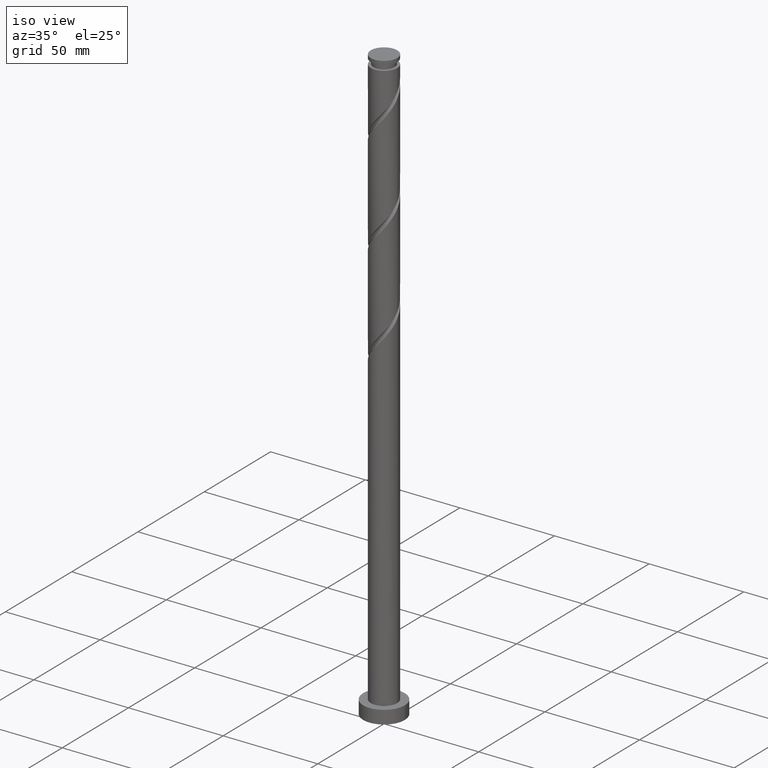
[diagram: clean part render]
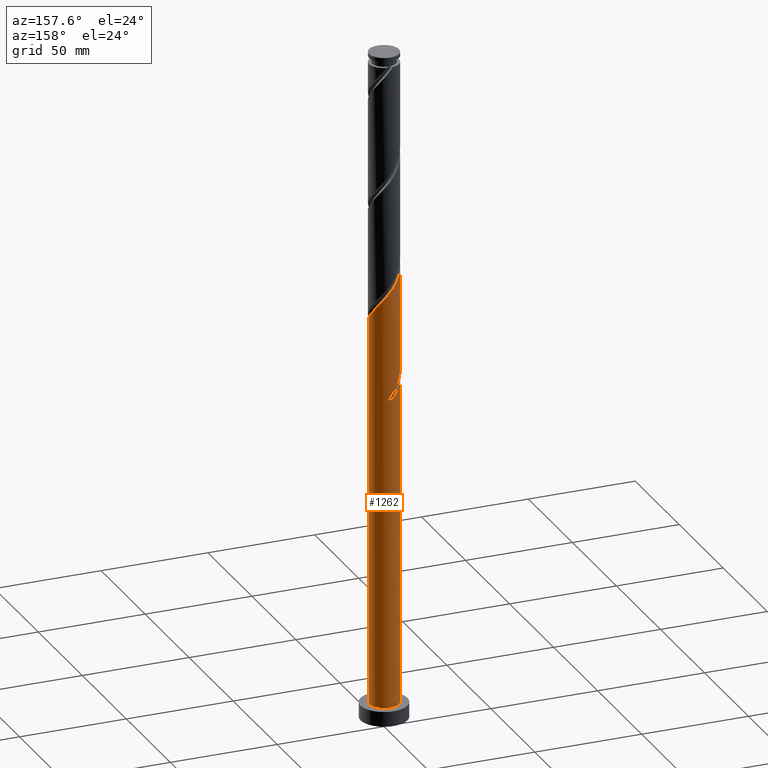
[diagram: tour spotlight — one face highlighted and labeled with its STEP entity id]
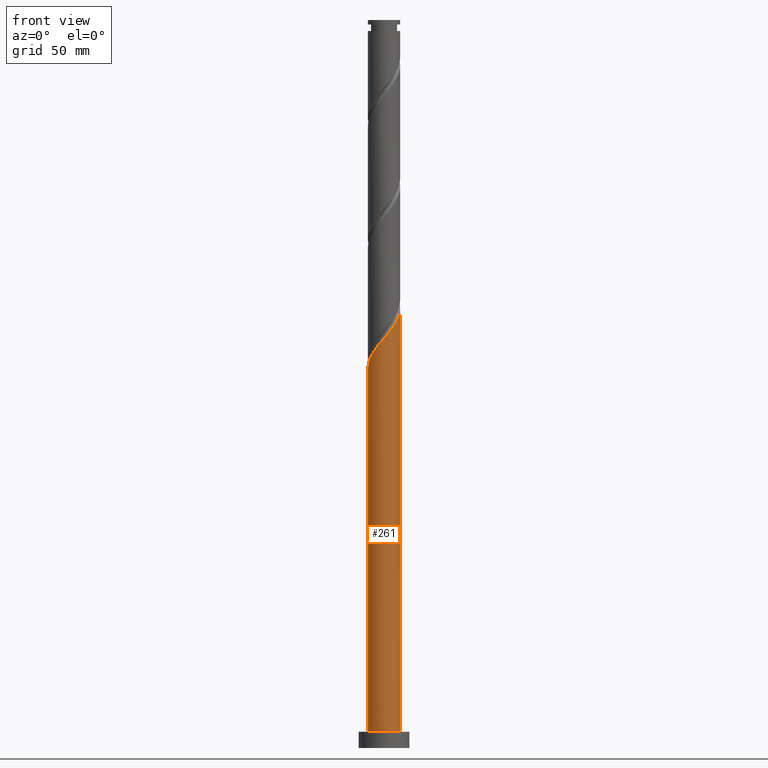
[diagram: tour spotlight — one face highlighted and labeled with its STEP entity id]
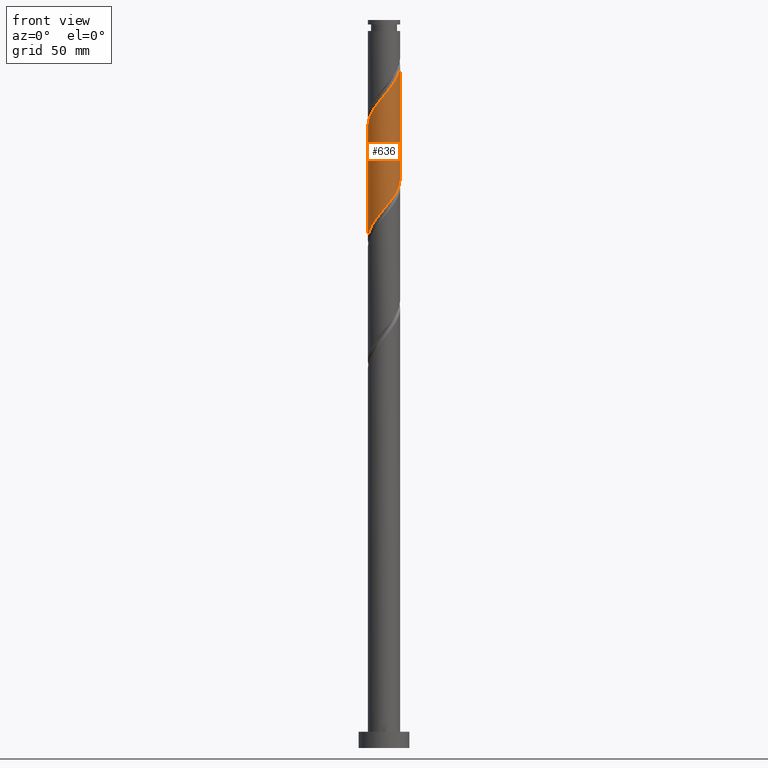
[diagram: tour spotlight — one face highlighted and labeled with its STEP entity id]
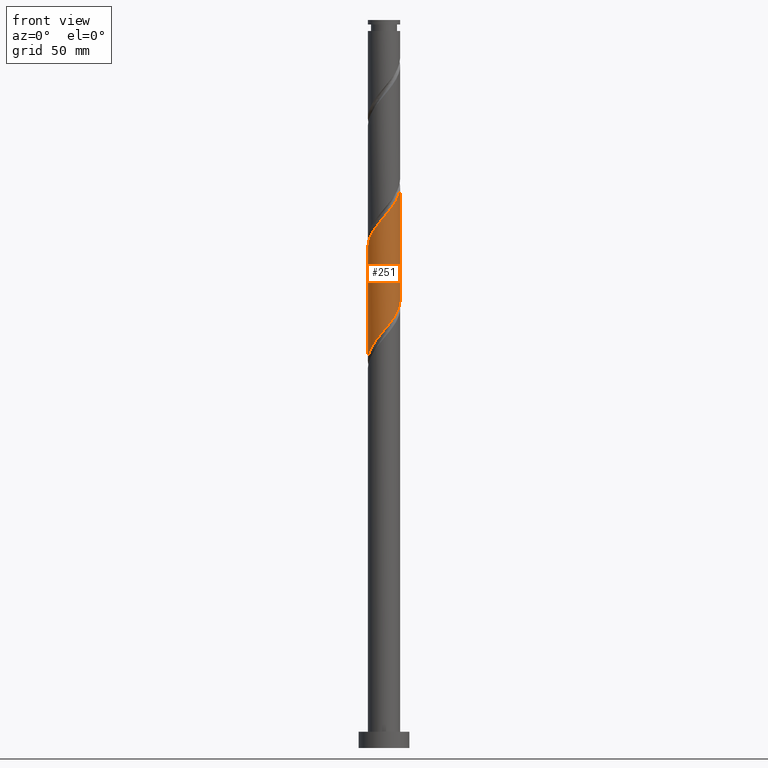
[diagram: tour spotlight — one face highlighted and labeled with its STEP entity id]
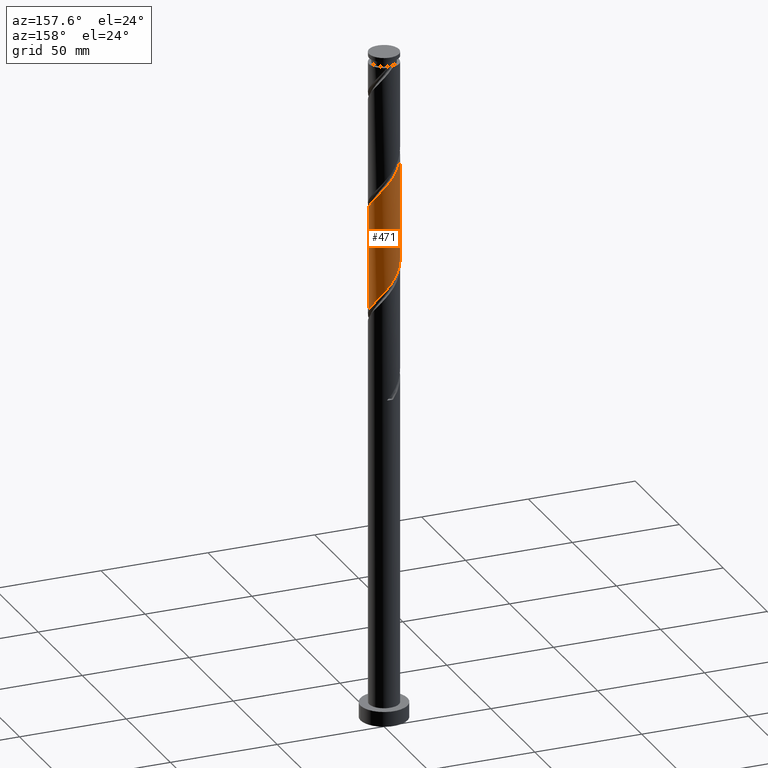
[diagram: tour spotlight — one face highlighted and labeled with its STEP entity id]
A machine part: a face-by-face anatomy tour. The part has 21 B-rep faces; the first image is the clean iso view, then the 5 largest visible faces are spotlighted one at a time (largest first), each with its STEP entity span.

Face 1 — auxiliary view, entity #1262. In plain terms, the highlighted cylindrical surface (edge-blend (fillet) strip) has radius 7 mm, axis along (-0, -0, -1).
Definition (entity closure, byte-faithful):
#29 = CIRCLE ( 'NONE', #1184, 7.000000000000000000 ) ;
#46 = CARTESIAN_POINT ( 'NONE',  ( 4.494853641711740622, 5.366217544937105899, 197.7581206460753833 ) ) ;
#75 = CARTESIAN_POINT ( 'NONE',  ( -6.591082676329794054, 2.485898938349334397, 213.6956206460753549 ) ) ;
#83 = CARTESIAN_POINT ( 'NONE',  ( 0.000000000000000000, 0.000000000000000000, 315.0000000000000000 ) ) ;
#89 =( BOUNDED_CURVE ( )  B_SPLINE_CURVE ( 2, ( #142, #1815, #481, #789, #1381, #657, #1233, #508, #1824, #1081, #1671, #1530, #498, #1099, #1240 ),
 .UNSPECIFIED., .F., .T. ) 
 B_SPLINE_CURVE_WITH_KNOTS ( ( 3, 2, 2, 2, 2, 2, 2, 3 ),
 ( 0.000000000000000000, 0.008928571428571396851, 0.01785714285714290472, 0.02678571428571430157, 0.03571428571428569843, 0.04464285714285709528, 0.05357142857142860315, 0.05453034012992220153 ),
 .UNSPECIFIED. ) 
 CURVE ( )  GEOMETRIC_REPRESENTATION_ITEM ( )  RATIONAL_B_SPLINE_CURVE ( ( 0.9090909090909291557, 0.9033747362666041392, 0.9090909090909291557, 0.9033747362666041392, 0.9090909090909291557, 0.9033747362666041392, 0.9090909090909291557, 0.9033747362666041392, 0.9090909090909291557, 0.9033747362666041392, 0.9090909090909291557, 0.9033747362666041392, 0.9090909090909291557, 0.9084770030214708303, 0.9079949616361990827 ) ) 
 REPRESENTATION_ITEM ( '' )  );
#119 = DIRECTION ( 'NONE',  ( 1.000000000000000000, 0.000000000000000000, 0.000000000000000000 ) ) ;
#127 = ORIENTED_EDGE ( 'NONE', *, *, #1121, .T. ) ;
#142 = CARTESIAN_POINT ( 'NONE',  ( -1.392982411949269750, 6.860000000000009202, 152.7581206460753833 ) ) ;
#203 = CARTESIAN_POINT ( 'NONE',  ( -3.188062536564720162, 6.231874297749633307, 158.3831206460754117 ) ) ;
#216 = VERTEX_POINT ( 'NONE', #1872 ) ;
#246 = ORIENTED_EDGE ( 'NONE', *, *, #1596, .T. ) ;
#268 = DIRECTION ( 'NONE',  ( 0.000000000000000000, 0.000000000000000000, 1.000000000000000000 ) ) ;
#269 = LINE ( 'NONE', #1902, #715 ) ;
#322 = DIRECTION ( 'NONE',  ( 0.000000000000000000, -0.000000000000000000, -1.000000000000000000 ) ) ;
#330 = CARTESIAN_POINT ( 'NONE',  ( 7.000000000000007994, -3.283670174735769499E-16, 190.4586035681692238 ) ) ;
#336 = CARTESIAN_POINT ( 'NONE',  ( -7.000000000000000000, 0.7035264706814512436, 166.7193666450178853 ) ) ;
#365 = CARTESIAN_POINT ( 'NONE',  ( -6.231874297749644853, 3.188062536564726823, 212.7581206460753833 ) ) ;
#379 = ORIENTED_EDGE ( 'NONE', *, *, #835, .F. ) ;
#403 = CARTESIAN_POINT ( 'NONE',  ( -1.721408663644532266, 6.785038851232138235, 156.5081206460753833 ) ) ;
#437 = VERTEX_POINT ( 'NONE', #1780 ) ;
#455 = VERTEX_POINT ( 'NONE', #894 ) ;
#477 = DIRECTION ( 'NONE',  ( -0.000000000000000000, -0.000000000000000000, -1.000000000000000000 ) ) ;
#480 = LINE ( 'NONE', #929, #995 ) ;
#481 = CARTESIAN_POINT ( 'NONE',  ( -2.884551041528023330, 6.378037730275646133, 154.6331206460754117 ) ) ;
#484 = EDGE_CURVE ( 'NONE', #437, #455, #269, .T. ) ;
#486 = CARTESIAN_POINT ( 'NONE',  ( 5.576254016389058599, 4.231476237048368283, 195.8831206460753265 ) ) ;
#498 = CARTESIAN_POINT ( 'NONE',  ( -6.997973224858988317, 0.1684361723526147936, 164.0081206460753833 ) ) ;
#503 = CARTESIAN_POINT ( 'NONE',  ( 1.721408663644536707, 6.785038851232146229, 201.5081206460753833 ) ) ;
#508 = CARTESIAN_POINT ( 'NONE',  ( -5.872665919169490323, 3.890226134780118805, 159.3206206460753549 ) ) ;
#512 = CARTESIAN_POINT ( 'NONE',  ( -5.366217544937106787, 4.494853641711739733, 210.8831206460753549 ) ) ;
#513 = CARTESIAN_POINT ( 'NONE',  ( -3.890226134780113476, 5.872665919169481441, 159.3206206460753549 ) ) ;
#531 = DIRECTION ( 'NONE',  ( -0.000000000000000000, -0.000000000000000000, -1.000000000000000000 ) ) ;
#559 = CARTESIAN_POINT ( 'NONE',  ( -0.9569183889397352427, 6.978995026134490409, 155.5706206460753549 ) ) ;
#563 = ORIENTED_EDGE ( 'NONE', *, *, #1551, .F. ) ;
#629 = CARTESIAN_POINT ( 'NONE',  ( -6.859999999999998543, 1.392982411949270860, 165.8831206460753549 ) ) ;
#639 = CARTESIAN_POINT ( 'NONE',  ( -0.6200460442345070433, 7.016951423583478231, 204.3206206460753549 ) ) ;
#650 = CARTESIAN_POINT ( 'NONE',  ( -2.884551041528023330, 6.378037730275646133, 207.1331206460753833 ) ) ;
#657 = CARTESIAN_POINT ( 'NONE',  ( -4.859769170704725916, 5.099481148643358885, 157.4456206460753549 ) ) ;
#681 = FACE_OUTER_BOUND ( 'NONE', #1562, .T. ) ;
#715 = VECTOR ( 'NONE', #1611, 1000.000000000000000 ) ;
#729 = ORIENTED_EDGE ( 'NONE', *, *, #1016, .F. ) ;
#749 = VECTOR ( 'NONE', #477, 1000.000000000000000 ) ;
#758 = CARTESIAN_POINT ( 'NONE',  ( -7.000000000000007994, 0.08423028016473764479, 216.6082408799441907 ) ) ;
#777 = CARTESIAN_POINT ( 'NONE',  ( -7.000000000000007994, -5.671793938179965453E-16, 216.7086035681693090 ) ) ;
#784 = LINE ( 'NONE', #1811, #749 ) ;
#789 = CARTESIAN_POINT ( 'NONE',  ( -3.603183303392011538, 6.053026884134758312, 155.5706206460753265 ) ) ;
#799 = CARTESIAN_POINT ( 'NONE',  ( 0.1684361723526161259, 6.997973224858987429, 203.3831206460753549 ) ) ;
#807 = CARTESIAN_POINT ( 'NONE',  ( -4.231476237048369171, 5.576254016389058599, 209.0081206460753549 ) ) ;
#818 = VERTEX_POINT ( 'NONE', #1620 ) ;
#830 = CARTESIAN_POINT ( 'NONE',  ( 0.6200460442345090417, 7.016951423583470238, 153.6956206460753549 ) ) ;
#835 = EDGE_CURVE ( 'NONE', #818, #437, #89, .T. ) ;
#869 = VERTEX_POINT ( 'NONE', #1659 ) ;
#894 = CARTESIAN_POINT ( 'NONE',  ( -7.000000000000000000, 0.000000000000000000, 7.000000000000000000 ) ) ;
#915 = CARTESIAN_POINT ( 'NONE',  ( -7.000000000000007994, -5.671793938179965453E-16, 216.7086035681693090 ) ) ;
#918 = CARTESIAN_POINT ( 'NONE',  ( -6.978995026134500179, 0.9569183889397380183, 215.5706206460753549 ) ) ;
#924 = CARTESIAN_POINT ( 'NONE',  ( 7.000000000000014211, 0.7035264706814203794, 191.2968746471328529 ) ) ;
#929 = CARTESIAN_POINT ( 'NONE',  ( 7.000000000000000000, 8.572527594031473190E-16, 315.0000000000000000 ) ) ;
#933 = CARTESIAN_POINT ( 'NONE',  ( -6.703048576416525961, 2.165918779664032012, 164.9456206460753833 ) ) ;
#952 = CARTESIAN_POINT ( 'NONE',  ( 0.9569183889397397946, 6.978995026134499291, 202.4456206460753549 ) ) ;
#984 = CARTESIAN_POINT ( 'NONE',  ( -6.785038851232147117, 1.721408663644536263, 214.6331206460754117 ) ) ;
#995 = VECTOR ( 'NONE', #1793, 1000.000000000000000 ) ;
#1016 = EDGE_CURVE ( 'NONE', #1607, #1495, #784, .T. ) ;
#1053 = EDGE_CURVE ( 'NONE', #216, #1607, #1338, .T. ) ;
#1063 = CARTESIAN_POINT ( 'NONE',  ( 0.000000000000000000, 0.000000000000000000, 152.7581206460753833 ) ) ;
#1081 = CARTESIAN_POINT ( 'NONE',  ( -6.591082676329794054, 2.485898938349334397, 161.1956206460754117 ) ) ;
#1099 = CARTESIAN_POINT ( 'NONE',  ( -7.000000000000008882, 0.08423028016472239310, 164.1082408799442476 ) ) ;
#1103 = CARTESIAN_POINT ( 'NONE',  ( -5.872665919169490323, 3.890226134780118805, 211.8206206460754117 ) ) ;
#1121 = EDGE_CURVE ( 'NONE', #216, #869, #480, .T. ) ;
#1153 = CARTESIAN_POINT ( 'NONE',  ( 1.392982411949271970, 6.859999999999998543, 152.7581206460753833 ) ) ;
#1159 = ORIENTED_EDGE ( 'NONE', *, *, #1053, .F. ) ;
#1184 = AXIS2_PLACEMENT_3D ( 'NONE', #1063, #322, #1202 ) ;
#1202 = DIRECTION ( 'NONE',  ( -1.000000000000000000, 0.000000000000000000, 0.000000000000000000 ) ) ;
#1233 = CARTESIAN_POINT ( 'NONE',  ( -5.366217544937106787, 4.494853641711739733, 158.3831206460753833 ) ) ;
#1238 = CARTESIAN_POINT ( 'NONE',  ( -2.165918779664034677, 6.703048576416536619, 206.1956206460753833 ) ) ;
#1240 = CARTESIAN_POINT ( 'NONE',  ( -7.000000000000007994, -5.671793938179964467E-16, 164.2086035681693659 ) ) ;
#1249 = CARTESIAN_POINT ( 'NONE',  ( -3.603183303392011538, 6.053026884134758312, 208.0706206460754117 ) ) ;
#1258 = CARTESIAN_POINT ( 'NONE',  ( 3.188062536564727267, 6.231874297749643077, 199.6331206460753265 ) ) ;
#1262 = ADVANCED_FACE ( 'NONE', ( #681 ), #1435, .T. ) ;
#1312 = CARTESIAN_POINT ( 'NONE',  ( -4.494853641711730852, 5.366217544937102346, 160.2581206460753833 ) ) ;
#1334 = CARTESIAN_POINT ( 'NONE',  ( 1.392982411949271970, 6.859999999999998543, 152.7581206460753833 ) ) ;
#1338 =( BOUNDED_CURVE ( )  B_SPLINE_CURVE ( 2, ( #330, #924, #1515, #1377, #1526, #1821, #486, #1524, #46, #1687, #1258, #1858, #503, #952, #799, #639, #1849, #1238, #650, #1249, #807, #1411, #512, #1103, #365, #75, #984, #918, #1500, #758, #777 ),
 .UNSPECIFIED., .F., .T. ) 
 B_SPLINE_CURVE_WITH_KNOTS ( ( 3, 2, 2, 2, 2, 2, 2, 2, 2, 2, 2, 2, 2, 2, 2, 3 ),
 ( 0.1795303401299217505, 0.1875000000000000000, 0.1964285714285713969, 0.2053571428571429047, 0.2142857142857143016, 0.2232142857142856984, 0.2321428571428570953, 0.2410714285714286031, 0.2500000000000000000, 0.2589285714285713969, 0.2678571428571429047, 0.2767857142857143016, 0.2857142857142856984, 0.2946428571428570953, 0.3035714285714286031, 0.3045303401299220281 ),
 .UNSPECIFIED. ) 
 CURVE ( )  GEOMETRIC_REPRESENTATION_ITEM ( )  RATIONAL_B_SPLINE_CURVE ( ( 0.9079949616361996378, 0.9039886423360622425, 0.9090909090909291557, 0.9033747362666041392, 0.9090909090909291557, 0.9033747362666041392, 0.9090909090909291557, 0.9033747362666041392, 0.9090909090909291557, 0.9033747362666041392, 0.9090909090909291557, 0.9033747362666041392, 0.9090909090909291557, 0.9033747362666041392, 0.9090909090909291557, 0.9033747362666041392, 0.9090909090909291557, 0.9033747362666041392, 0.9090909090909291557, 0.9033747362666041392, 0.9090909090909291557, 0.9033747362666041392, 0.9090909090909291557, 0.9033747362666041392, 0.9090909090909291557, 0.9033747362666041392, 0.9090909090909291557, 0.9033747362666041392, 0.9090909090909291557, 0.9084770030214709413, 0.9079949616361993048 ) ) 
 REPRESENTATION_ITEM ( '' )  );
#1345 = CARTESIAN_POINT ( 'NONE',  ( -6.378037730275637252, 2.884551041528019777, 164.0081206460753265 ) ) ;
#1356 = CARTESIAN_POINT ( 'NONE',  ( -6.999999999999999112, 2.417975310487264347E-15, 167.5576377239814008 ) ) ;
#1377 = CARTESIAN_POINT ( 'NONE',  ( 6.703048576416536619, 2.165918779664033345, 193.0706206460753549 ) ) ;
#1381 = CARTESIAN_POINT ( 'NONE',  ( -4.231476237048369171, 5.576254016389058599, 156.5081206460754117 ) ) ;
#1411 = CARTESIAN_POINT ( 'NONE',  ( -4.859769170704725916, 5.099481148643358885, 209.9456206460753549 ) ) ;
#1435 = CYLINDRICAL_SURFACE ( 'NONE', #1834, 7.000000000000000000 ) ;
#1484 = CARTESIAN_POINT ( 'NONE',  ( 0.000000000000000000, 0.000000000000000000, 7.000000000000000000 ) ) ;
#1494 = ORIENTED_EDGE ( 'NONE', *, *, #484, .F. ) ;
#1495 = VERTEX_POINT ( 'NONE', #1702 ) ;
#1500 = CARTESIAN_POINT ( 'NONE',  ( -6.997973224858988317, 0.1684361723526147936, 216.5081206460753265 ) ) ;
#1515 = CARTESIAN_POINT ( 'NONE',  ( 6.860000000000009202, 1.392982411949269972, 192.1331206460753549 ) ) ;
#1524 = CARTESIAN_POINT ( 'NONE',  ( 5.099481148643358885, 4.859769170704724139, 196.8206206460753833 ) ) ;
#1526 = CARTESIAN_POINT ( 'NONE',  ( 6.378037730275647021, 2.884551041528021997, 194.0081206460753549 ) ) ;
#1530 = CARTESIAN_POINT ( 'NONE',  ( -6.978995026134500179, 0.9569183889397380183, 163.0706206460753549 ) ) ;
#1535 =( BOUNDED_CURVE ( )  B_SPLINE_CURVE ( 2, ( #1356, #336, #629, #933, #1345, #1798, #1648, #1908, #1312, #513, #203, #1744, #403, #559, #1597, #830, #1153 ),
 .UNSPECIFIED., .F., .T. ) 
 B_SPLINE_CURVE_WITH_KNOTS ( ( 3, 2, 2, 2, 2, 2, 2, 2, 3 ),
 ( 0.9295303401299220836, 0.9375000000000000000, 0.9464285714285713969, 0.9553571428571429047, 0.9642857142857143016, 0.9732142857142856984, 0.9821428571428570953, 0.9910714285714286031, 1.000000000000000000 ),
 .UNSPECIFIED. ) 
 CURVE ( )  GEOMETRIC_REPRESENTATION_ITEM ( )  RATIONAL_B_SPLINE_CURVE ( ( 0.9079949616361933096, 0.9039886423360563583, 0.9090909090909231605, 0.9033747362665981440, 0.9090909090909231605, 0.9033747362665981440, 0.9090909090909231605, 0.9033747362665981440, 0.9090909090909231605, 0.9033747362665981440, 0.9090909090909231605, 0.9033747362665981440, 0.9090909090909231605, 0.9033747362665981440, 0.9090909090909231605, 0.9033747362665981440, 0.9090909090909231605 ) ) 
 REPRESENTATION_ITEM ( '' )  );
#1551 = EDGE_CURVE ( 'NONE', #1495, #1707, #1535, .T. ) ;
#1562 = EDGE_LOOP ( 'NONE', ( #1159, #127, #1911, #1494, #379, #246, #563, #729 ) ) ;
#1577 = AXIS2_PLACEMENT_3D ( 'NONE', #1484, #268, #119 ) ;
#1596 = EDGE_CURVE ( 'NONE', #818, #1707, #29, .T. ) ;
#1597 = CARTESIAN_POINT ( 'NONE',  ( -0.1684361723526131283, 6.997973224858978547, 154.6331206460754402 ) ) ;
#1607 = VERTEX_POINT ( 'NONE', #915 ) ;
#1611 = DIRECTION ( 'NONE',  ( -0.000000000000000000, -0.000000000000000000, -1.000000000000000000 ) ) ;
#1620 = CARTESIAN_POINT ( 'NONE',  ( -1.392982411949269750, 6.860000000000008313, 152.7581206460753833 ) ) ;
#1648 = CARTESIAN_POINT ( 'NONE',  ( -5.576254016389048829, 4.231476237048363842, 162.1331206460753549 ) ) ;
#1659 = CARTESIAN_POINT ( 'NONE',  ( 7.000000000000000000, 8.572527594031473190E-16, 7.000000000000000000 ) ) ;
#1671 = CARTESIAN_POINT ( 'NONE',  ( -6.785038851232147117, 1.721408663644536263, 162.1331206460754117 ) ) ;
#1687 = CARTESIAN_POINT ( 'NONE',  ( 3.890226134780119249, 5.872665919169489435, 198.6956206460754117 ) ) ;
#1692 = EDGE_CURVE ( 'NONE', #869, #455, #1734, .T. ) ;
#1702 = CARTESIAN_POINT ( 'NONE',  ( -6.999999999999999112, 2.417975310487264347E-15, 167.5576377239814008 ) ) ;
#1707 = VERTEX_POINT ( 'NONE', #1334 ) ;
#1734 = CIRCLE ( 'NONE', #1577, 7.000000000000000000 ) ;
#1744 = CARTESIAN_POINT ( 'NONE',  ( -2.485898938349330400, 6.591082676329786949, 157.4456206460754117 ) ) ;
#1780 = CARTESIAN_POINT ( 'NONE',  ( -7.000000000000007994, -5.671793938179965453E-16, 164.2086035681693659 ) ) ;
#1784 = DIRECTION ( 'NONE',  ( -1.000000000000000000, 0.000000000000000000, 0.000000000000000000 ) ) ;
#1793 = DIRECTION ( 'NONE',  ( -0.000000000000000000, -0.000000000000000000, -1.000000000000000000 ) ) ;
#1798 = CARTESIAN_POINT ( 'NONE',  ( -6.053026884134746766, 3.603183303392007097, 163.0706206460753549 ) ) ;
#1811 = CARTESIAN_POINT ( 'NONE',  ( -7.000000000000000000, 0.000000000000000000, 315.0000000000000000 ) ) ;
#1815 = CARTESIAN_POINT ( 'NONE',  ( -2.165918779664034677, 6.703048576416536619, 153.6956206460753833 ) ) ;
#1821 = CARTESIAN_POINT ( 'NONE',  ( 6.053026884134759200, 3.603183303392009762, 194.9456206460753549 ) ) ;
#1824 = CARTESIAN_POINT ( 'NONE',  ( -6.231874297749644853, 3.188062536564726823, 160.2581206460754117 ) ) ;
#1834 = AXIS2_PLACEMENT_3D ( 'NONE', #83, #531, #1784 ) ;
#1849 = CARTESIAN_POINT ( 'NONE',  ( -1.392982411949269750, 6.860000000000009202, 205.2581206460754117 ) ) ;
#1858 = CARTESIAN_POINT ( 'NONE',  ( 2.485898938349336174, 6.591082676329794054, 200.5706206460753265 ) ) ;
#1872 = CARTESIAN_POINT ( 'NONE',  ( 7.000000000000007994, -3.283670174735769499E-16, 190.4586035681692238 ) ) ;
#1902 = CARTESIAN_POINT ( 'NONE',  ( -7.000000000000000000, 0.000000000000000000, 315.0000000000000000 ) ) ;
#1908 = CARTESIAN_POINT ( 'NONE',  ( -5.099481148643350004, 4.859769170704720587, 161.1956206460754117 ) ) ;
#1911 = ORIENTED_EDGE ( 'NONE', *, *, #1692, .T. ) ;

Face 2 — front view, entity #261. In plain terms, the highlighted cylindrical surface (edge-blend (fillet) strip) has radius 7 mm, axis along (-0, -0, -1).
Definition (entity closure, byte-faithful):
#33 = EDGE_CURVE ( 'NONE', #455, #869, #92, .T. ) ;
#79 = CARTESIAN_POINT ( 'NONE',  ( -4.494853641711740622, -5.366217544937106787, 171.5081206460753833 ) ) ;
#92 = CIRCLE ( 'NONE', #994, 7.000000000000000000 ) ;
#199 = CARTESIAN_POINT ( 'NONE',  ( 3.603183303392009762, -6.053026884134759200, 181.8206206460753833 ) ) ;
#208 = CARTESIAN_POINT ( 'NONE',  ( 7.000000000000007994, -3.283670174735769499E-16, 190.4586035681692238 ) ) ;
#216 = VERTEX_POINT ( 'NONE', #1872 ) ;
#218 = CARTESIAN_POINT ( 'NONE',  ( -5.099481148643358885, -4.859769170704725028, 170.5706206460753833 ) ) ;
#224 = DIRECTION ( 'NONE',  ( -0.000000000000000000, -0.000000000000000000, -1.000000000000000000 ) ) ;
#226 = ORIENTED_EDGE ( 'NONE', *, *, #1804, .F. ) ;
#229 = CARTESIAN_POINT ( 'NONE',  ( 4.859769170704725028, -5.099481148643358885, 183.6956206460753265 ) ) ;
#235 = CYLINDRICAL_SURFACE ( 'NONE', #1643, 7.000000000000000000 ) ;
#261 = ADVANCED_FACE ( 'NONE', ( #377 ), #235, .T. ) ;
#269 = LINE ( 'NONE', #1902, #715 ) ;
#278 = ORIENTED_EDGE ( 'NONE', *, *, #484, .T. ) ;
#370 = CARTESIAN_POINT ( 'NONE',  ( -3.890226134780118805, -5.872665919169489435, 172.4456206460753833 ) ) ;
#377 = FACE_OUTER_BOUND ( 'NONE', #979, .T. ) ;
#389 = CARTESIAN_POINT ( 'NONE',  ( -6.378037730275646133, -2.884551041528022886, 167.7581206460753833 ) ) ;
#437 = VERTEX_POINT ( 'NONE', #1780 ) ;
#455 = VERTEX_POINT ( 'NONE', #894 ) ;
#480 = LINE ( 'NONE', #929, #995 ) ;
#484 = EDGE_CURVE ( 'NONE', #437, #455, #269, .T. ) ;
#499 = CARTESIAN_POINT ( 'NONE',  ( -2.485898938349335285, -6.591082676329794054, 174.3206206460753833 ) ) ;
#509 = CARTESIAN_POINT ( 'NONE',  ( 6.978995026134499291, -0.9569183889397392395, 189.3206206460754117 ) ) ;
#514 = DIRECTION ( 'NONE',  ( -1.000000000000000000, 0.000000000000000000, 0.000000000000000000 ) ) ;
#619 = ORIENTED_EDGE ( 'NONE', *, *, #1121, .F. ) ;
#659 = CARTESIAN_POINT ( 'NONE',  ( 0.6200460442345080425, -7.016951423583478231, 178.0706206460753833 ) ) ;
#685 = CARTESIAN_POINT ( 'NONE',  ( -6.053026884134759200, -3.603183303392010650, 168.6956206460753549 ) ) ;
#715 = VECTOR ( 'NONE', #1611, 1000.000000000000000 ) ;
#763 = DIRECTION ( 'NONE',  ( 1.000000000000000000, 0.000000000000000000, 0.000000000000000000 ) ) ;
#804 = CARTESIAN_POINT ( 'NONE',  ( 5.872665919169489435, -3.890226134780119249, 185.5706206460753549 ) ) ;
#836 = CARTESIAN_POINT ( 'NONE',  ( -6.703048576416536619, -2.165918779664034233, 166.8206206460753833 ) ) ;
#869 = VERTEX_POINT ( 'NONE', #1659 ) ;
#894 = CARTESIAN_POINT ( 'NONE',  ( -7.000000000000000000, 0.000000000000000000, 7.000000000000000000 ) ) ;
#929 = CARTESIAN_POINT ( 'NONE',  ( 7.000000000000000000, 8.572527594031473190E-16, 315.0000000000000000 ) ) ;
#946 = CARTESIAN_POINT ( 'NONE',  ( 2.884551041528022886, -6.378037730275646133, 180.8831206460753833 ) ) ;
#958 = CARTESIAN_POINT ( 'NONE',  ( -6.860000000000009202, -1.392982411949271082, 165.8831206460753833 ) ) ;
#974 = CARTESIAN_POINT ( 'NONE',  ( 2.165918779664033789, -6.703048576416536619, 179.9456206460754117 ) ) ;
#979 = EDGE_LOOP ( 'NONE', ( #619, #226, #278, #1414 ) ) ;
#994 = AXIS2_PLACEMENT_3D ( 'NONE', #1482, #1332, #763 ) ;
#995 = VECTOR ( 'NONE', #1793, 1000.000000000000000 ) ;
#1090 = CARTESIAN_POINT ( 'NONE',  ( -7.000000000000007994, -5.671793938179964467E-16, 164.2086035681693659 ) ) ;
#1100 = CARTESIAN_POINT ( 'NONE',  ( 7.000000000000007105, -0.08423028016476291624, 190.3582408799441623 ) ) ;
#1121 = EDGE_CURVE ( 'NONE', #216, #869, #480, .T. ) ;
#1127 = CARTESIAN_POINT ( 'NONE',  ( -0.1684361723526152932, -6.997973224858988317, 177.1331206460753549 ) ) ;
#1243 = CARTESIAN_POINT ( 'NONE',  ( -5.576254016389058599, -4.231476237048368283, 169.6331206460753549 ) ) ;
#1255 = CARTESIAN_POINT ( 'NONE',  ( 6.591082676329794054, -2.485898938349335285, 187.4456206460753265 ) ) ;
#1263 = CARTESIAN_POINT ( 'NONE',  ( 4.231476237048368283, -5.576254016389058599, 182.7581206460753549 ) ) ;
#1280 = CARTESIAN_POINT ( 'NONE',  ( 1.392982411949270860, -6.860000000000009202, 179.0081206460753265 ) ) ;
#1332 = DIRECTION ( 'NONE',  ( 0.000000000000000000, 0.000000000000000000, 1.000000000000000000 ) ) ;
#1395 = CARTESIAN_POINT ( 'NONE',  ( 6.231874297749643077, -3.188062536564727267, 186.5081206460753265 ) ) ;
#1413 =( BOUNDED_CURVE ( )  B_SPLINE_CURVE ( 2, ( #1090, #1416, #958, #836, #389, #685, #1243, #218, #79, #370, #1709, #499, #1564, #1682, #1127, #659, #1280, #974, #946, #199, #1263, #229, #1547, #804, #1395, #1255, #1845, #509, #1854, #1100, #208 ),
 .UNSPECIFIED., .F., .T. ) 
 B_SPLINE_CURVE_WITH_KNOTS ( ( 3, 2, 2, 2, 2, 2, 2, 2, 2, 2, 2, 2, 2, 2, 2, 3 ),
 ( 0.05453034012992220153, 0.06250000000000000000, 0.07142857142857139685, 0.08035714285714290472, 0.08928571428571430157, 0.09821428571428569843, 0.1071428571428570953, 0.1160714285714286031, 0.1250000000000000000, 0.1339285714285713969, 0.1428571428571429047, 0.1517857142857143016, 0.1607142857142856984, 0.1696428571428570953, 0.1785714285714286031, 0.1795303401299217505 ),
 .UNSPECIFIED. ) 
 CURVE ( )  GEOMETRIC_REPRESENTATION_ITEM ( )  RATIONAL_B_SPLINE_CURVE ( ( 0.9079949616361990827, 0.9039886423360624645, 0.9090909090909291557, 0.9033747362666041392, 0.9090909090909291557, 0.9033747362666041392, 0.9090909090909291557, 0.9033747362666041392, 0.9090909090909291557, 0.9033747362666041392, 0.9090909090909291557, 0.9033747362666041392, 0.9090909090909291557, 0.9033747362666041392, 0.9090909090909291557, 0.9033747362666041392, 0.9090909090909291557, 0.9033747362666041392, 0.9090909090909291557, 0.9033747362666041392, 0.9090909090909291557, 0.9033747362666041392, 0.9090909090909291557, 0.9033747362666041392, 0.9090909090909291557, 0.9033747362666041392, 0.9090909090909291557, 0.9033747362666041392, 0.9090909090909291557, 0.9084770030214711634, 0.9079949616361996378 ) ) 
 REPRESENTATION_ITEM ( '' )  );
#1414 = ORIENTED_EDGE ( 'NONE', *, *, #33, .T. ) ;
#1416 = CARTESIAN_POINT ( 'NONE',  ( -7.000000000000007105, -0.7035264706814606805, 165.0468746471329382 ) ) ;
#1444 = CARTESIAN_POINT ( 'NONE',  ( 0.000000000000000000, 0.000000000000000000, 315.0000000000000000 ) ) ;
#1482 = CARTESIAN_POINT ( 'NONE',  ( 0.000000000000000000, 0.000000000000000000, 7.000000000000000000 ) ) ;
#1547 = CARTESIAN_POINT ( 'NONE',  ( 5.366217544937105899, -4.494853641711740622, 184.6331206460753549 ) ) ;
#1564 = CARTESIAN_POINT ( 'NONE',  ( -1.721408663644536707, -6.785038851232146229, 175.2581206460753833 ) ) ;
#1611 = DIRECTION ( 'NONE',  ( -0.000000000000000000, -0.000000000000000000, -1.000000000000000000 ) ) ;
#1643 = AXIS2_PLACEMENT_3D ( 'NONE', #1444, #224, #514 ) ;
#1659 = CARTESIAN_POINT ( 'NONE',  ( 7.000000000000000000, 8.572527594031473190E-16, 7.000000000000000000 ) ) ;
#1682 = CARTESIAN_POINT ( 'NONE',  ( -0.9569183889397385734, -6.978995026134500179, 176.1956206460753833 ) ) ;
#1709 = CARTESIAN_POINT ( 'NONE',  ( -3.188062536564726823, -6.231874297749643077, 173.3831206460753833 ) ) ;
#1780 = CARTESIAN_POINT ( 'NONE',  ( -7.000000000000007994, -5.671793938179965453E-16, 164.2086035681693659 ) ) ;
#1793 = DIRECTION ( 'NONE',  ( -0.000000000000000000, -0.000000000000000000, -1.000000000000000000 ) ) ;
#1804 = EDGE_CURVE ( 'NONE', #437, #216, #1413, .T. ) ;
#1845 = CARTESIAN_POINT ( 'NONE',  ( 6.785038851232146229, -1.721408663644536707, 188.3831206460753549 ) ) ;
#1854 = CARTESIAN_POINT ( 'NONE',  ( 6.997973224858988317, -0.1684361723526157095, 190.2581206460753265 ) ) ;
#1872 = CARTESIAN_POINT ( 'NONE',  ( 7.000000000000007994, -3.283670174735769499E-16, 190.4586035681692238 ) ) ;
#1902 = CARTESIAN_POINT ( 'NONE',  ( -7.000000000000000000, 0.000000000000000000, 315.0000000000000000 ) ) ;

Face 3 — front view, entity #636. In plain terms, the highlighted cylindrical surface (edge-blend (fillet) strip) has radius 7 mm, axis along (-0, -0, -1).
Definition (entity closure, byte-faithful):
#36 = CARTESIAN_POINT ( 'NONE',  ( -3.188062536564726823, -6.231874297749643077, 278.3831206460753833 ) ) ;
#44 = CARTESIAN_POINT ( 'NONE',  ( -0.9569183889397385734, -6.978995026134500179, 281.1956206460753833 ) ) ;
#90 = CARTESIAN_POINT ( 'NONE',  ( 3.188062536564719274, -6.231874297749634195, 237.1331206460753833 ) ) ;
#152 = DIRECTION ( 'NONE',  ( -0.000000000000000000, -0.000000000000000000, -1.000000000000000000 ) ) ;
#177 = CARTESIAN_POINT ( 'NONE',  ( -3.890226134780118805, -5.872665919169489435, 277.4456206460753265 ) ) ;
#192 = CARTESIAN_POINT ( 'NONE',  ( -1.392982411949271082, -6.859999999999998543, 231.5081206460753833 ) ) ;
#201 = CARTESIAN_POINT ( 'NONE',  ( -6.703048576416536619, -2.165918779664034233, 271.8206206460753265 ) ) ;
#220 = CARTESIAN_POINT ( 'NONE',  ( 6.378037730275637252, -2.884551041528021109, 242.7581206460754117 ) ) ;
#231 = CARTESIAN_POINT ( 'NONE',  ( 5.576254016389047941, -4.231476237048364730, 240.8831206460753549 ) ) ;
#255 = VERTEX_POINT ( 'NONE', #1705 ) ;
#297 = ORIENTED_EDGE ( 'NONE', *, *, #1491, .F. ) ;
#311 = CARTESIAN_POINT ( 'NONE',  ( 7.000000000000000000, 8.572527594031473190E-16, 315.0000000000000000 ) ) ;
#340 = CARTESIAN_POINT ( 'NONE',  ( -7.000000000000000000, 0.000000000000000000, 315.0000000000000000 ) ) ;
#345 = CARTESIAN_POINT ( 'NONE',  ( 3.603183303392009762, -6.053026884134759200, 286.8206206460754970 ) ) ;
#354 = CARTESIAN_POINT ( 'NONE',  ( -6.591082676329786949, -2.485898938349329068, 223.0706206460753265 ) ) ;
#373 = CARTESIAN_POINT ( 'NONE',  ( 7.000000000000000000, -0.7035264706814521318, 245.4693666450178284 ) ) ;
#383 = CARTESIAN_POINT ( 'NONE',  ( 0.1684361723526125176, -6.997973224858978547, 233.3831206460753833 ) ) ;
#409 = EDGE_CURVE ( 'NONE', #583, #1365, #1666, .T. ) ;
#473 = CARTESIAN_POINT ( 'NONE',  ( -6.053026884134759200, -3.603183303392010650, 273.6956206460753833 ) ) ;
#490 = CARTESIAN_POINT ( 'NONE',  ( -0.1684361723526152932, -6.997973224858988317, 282.1331206460753265 ) ) ;
#501 = CARTESIAN_POINT ( 'NONE',  ( 5.366217544937105899, -4.494853641711740622, 289.6331206460752696 ) ) ;
#519 = CARTESIAN_POINT ( 'NONE',  ( -6.997973224858978547, -0.1684361723526127674, 220.2581206460753549 ) ) ;
#520 = CARTESIAN_POINT ( 'NONE',  ( 6.999999999999998224, -3.074709345434422881E-15, 246.3076377239813723 ) ) ;
#547 = CARTESIAN_POINT ( 'NONE',  ( 5.099481148643350004, -4.859769170704720587, 239.9456206460753833 ) ) ;
#583 = VERTEX_POINT ( 'NONE', #1504 ) ;
#606 = CARTESIAN_POINT ( 'NONE',  ( -6.999999999999999112, 2.417975310487264347E-15, 220.0576377239814008 ) ) ;
#608 = CARTESIAN_POINT ( 'NONE',  ( 2.165918779664033789, -6.703048576416536619, 284.9456206460753265 ) ) ;
#636 = ADVANCED_FACE ( 'NONE', ( #874 ), #722, .T. ) ;
#637 = CARTESIAN_POINT ( 'NONE',  ( -6.378037730275646133, -2.884551041528022886, 272.7581206460753833 ) ) ;
#646 = CARTESIAN_POINT ( 'NONE',  ( -6.231874297749634195, -3.188062536564720162, 224.0081206460753833 ) ) ;
#647 = CARTESIAN_POINT ( 'NONE',  ( -5.576254016389058599, -4.231476237048368283, 274.6331206460753265 ) ) ;
#661 = CARTESIAN_POINT ( 'NONE',  ( -3.603183303392007542, -6.053026884134746766, 228.6956206460754117 ) ) ;
#669 = CARTESIAN_POINT ( 'NONE',  ( -2.884551041528020665, -6.378037730275637252, 229.6331206460752696 ) ) ;
#705 = EDGE_CURVE ( 'NONE', #583, #1190, #1378, .T. ) ;
#707 = EDGE_LOOP ( 'NONE', ( #890, #1866, #1331, #297 ) ) ;
#722 = CYLINDRICAL_SURFACE ( 'NONE', #1279, 7.000000000000000000 ) ;
#765 = CARTESIAN_POINT ( 'NONE',  ( 7.000000000000009770, -1.358245390458886674E-15, 295.4586035681693943 ) ) ;
#791 = CARTESIAN_POINT ( 'NONE',  ( -1.721408663644536707, -6.785038851232146229, 280.2581206460752696 ) ) ;
#796 = CARTESIAN_POINT ( 'NONE',  ( -5.872665919169481441, -3.890226134780111700, 224.9456206460753833 ) ) ;
#874 = FACE_OUTER_BOUND ( 'NONE', #707, .T. ) ;
#883 = DIRECTION ( 'NONE',  ( -0.000000000000000000, -0.000000000000000000, -1.000000000000000000 ) ) ;
#890 = ORIENTED_EDGE ( 'NONE', *, *, #1656, .F. ) ;
#948 = CARTESIAN_POINT ( 'NONE',  ( -4.231476237048364730, -5.576254016389047941, 227.7581206460753549 ) ) ;
#985 = CARTESIAN_POINT ( 'NONE',  ( 6.703048576416525961, -2.165918779664033789, 243.6956206460754117 ) ) ;
#1031 = DIRECTION ( 'NONE',  ( -0.000000000000000000, -0.000000000000000000, -1.000000000000000000 ) ) ;
#1032 = CARTESIAN_POINT ( 'NONE',  ( 6.997973224858988317, -0.1684361723526157095, 295.2581206460753833 ) ) ;
#1056 = CARTESIAN_POINT ( 'NONE',  ( -2.485898938349335285, -6.591082676329794054, 279.3206206460753833 ) ) ;
#1083 = CARTESIAN_POINT ( 'NONE',  ( 0.6200460442345080425, -7.016951423583478231, 283.0706206460753265 ) ) ;
#1092 = CARTESIAN_POINT ( 'NONE',  ( -0.6200460442345099299, -7.016951423583470238, 232.4456206460753549 ) ) ;
#1135 = DIRECTION ( 'NONE',  ( -1.000000000000000000, 0.000000000000000000, 0.000000000000000000 ) ) ;
#1190 = VERTEX_POINT ( 'NONE', #606 ) ;
#1192 = CARTESIAN_POINT ( 'NONE',  ( 6.591082676329794054, -2.485898938349335285, 292.4456206460753833 ) ) ;
#1207 = CARTESIAN_POINT ( 'NONE',  ( 2.884551041528022886, -6.378037730275646133, 285.8831206460752696 ) ) ;
#1245 = CARTESIAN_POINT ( 'NONE',  ( -4.859769170704720587, -5.099481148643350004, 226.8206206460753833 ) ) ;
#1247 = CARTESIAN_POINT ( 'NONE',  ( 4.231476237048368283, -5.576254016389058599, 287.7581206460754402 ) ) ;
#1265 = CARTESIAN_POINT ( 'NONE',  ( -6.999999999999997335, -0.08423028016472106083, 220.1580004122065191 ) ) ;
#1279 = AXIS2_PLACEMENT_3D ( 'NONE', #1318, #883, #1135 ) ;
#1318 = CARTESIAN_POINT ( 'NONE',  ( 0.000000000000000000, 0.000000000000000000, 315.0000000000000000 ) ) ;
#1331 = ORIENTED_EDGE ( 'NONE', *, *, #705, .T. ) ;
#1351 =( BOUNDED_CURVE ( )  B_SPLINE_CURVE ( 2, ( #520, #373, #1558, #985, #220, #1566, #231, #547, #1728, #1425, #90, #1585, #1388, #1532, #383, #1092, #192, #1684, #669, #661, #948, #1245, #1847, #796, #646, #354, #1541, #1549, #519, #1265, #1856 ),
 .UNSPECIFIED., .F., .T. ) 
 B_SPLINE_CURVE_WITH_KNOTS ( ( 3, 2, 2, 2, 2, 2, 2, 2, 2, 2, 2, 2, 2, 2, 2, 3 ),
 ( 0.5545303401299220836, 0.5625000000000000000, 0.5714285714285713969, 0.5803571428571429047, 0.5892857142857143016, 0.5982142857142856984, 0.6071428571428570953, 0.6160714285714286031, 0.6250000000000000000, 0.6339285714285713969, 0.6428571428571429047, 0.6517857142857143016, 0.6607142857142856984, 0.6696428571428570953, 0.6785714285714286031, 0.6795303401299221946 ),
 .UNSPECIFIED. ) 
 CURVE ( )  GEOMETRIC_REPRESENTATION_ITEM ( )  RATIONAL_B_SPLINE_CURVE ( ( 0.9079949616361933096, 0.9039886423360563583, 0.9090909090909231605, 0.9033747362665981440, 0.9090909090909231605, 0.9033747362665981440, 0.9090909090909231605, 0.9033747362665981440, 0.9090909090909231605, 0.9033747362665981440, 0.9090909090909231605, 0.9033747362665981440, 0.9090909090909231605, 0.9033747362665981440, 0.9090909090909231605, 0.9033747362665981440, 0.9090909090909231605, 0.9033747362665981440, 0.9090909090909231605, 0.9033747362665981440, 0.9090909090909231605, 0.9033747362665981440, 0.9090909090909231605, 0.9033747362665981440, 0.9090909090909231605, 0.9033747362665981440, 0.9090909090909231605, 0.9033747362665981440, 0.9090909090909231605, 0.9084770030214648351, 0.9079949616361930875 ) ) 
 REPRESENTATION_ITEM ( '' )  );
#1353 = CARTESIAN_POINT ( 'NONE',  ( 6.231874297749643077, -3.188062536564727267, 291.5081206460753833 ) ) ;
#1365 = VERTEX_POINT ( 'NONE', #1763 ) ;
#1378 = LINE ( 'NONE', #340, #1581 ) ;
#1388 = CARTESIAN_POINT ( 'NONE',  ( 1.721408663644531600, -6.785038851232138235, 235.2581206460753833 ) ) ;
#1425 = CARTESIAN_POINT ( 'NONE',  ( 3.890226134780111700, -5.872665919169481441, 238.0706206460753833 ) ) ;
#1491 = EDGE_CURVE ( 'NONE', #255, #1190, #1351, .T. ) ;
#1497 = CARTESIAN_POINT ( 'NONE',  ( 6.785038851232146229, -1.721408663644536707, 293.3831206460753833 ) ) ;
#1504 = CARTESIAN_POINT ( 'NONE',  ( -7.000000000000008882, 4.776247526888393880E-16, 269.2086035681693374 ) ) ;
#1510 = CARTESIAN_POINT ( 'NONE',  ( -5.099481148643358885, -4.859769170704725028, 275.5706206460753265 ) ) ;
#1521 = CARTESIAN_POINT ( 'NONE',  ( -4.494853641711740622, -5.366217544937106787, 276.5081206460753833 ) ) ;
#1532 = CARTESIAN_POINT ( 'NONE',  ( 0.9569183889397339104, -6.978995026134489521, 234.3206206460752981 ) ) ;
#1541 = CARTESIAN_POINT ( 'NONE',  ( -6.785038851232138235, -1.721408663644532044, 222.1331206460753549 ) ) ;
#1549 = CARTESIAN_POINT ( 'NONE',  ( -6.978995026134489521, -0.9569183889397343545, 221.1956206460753833 ) ) ;
#1558 = CARTESIAN_POINT ( 'NONE',  ( 6.859999999999998543, -1.392982411949271748, 244.6331206460753549 ) ) ;
#1566 = CARTESIAN_POINT ( 'NONE',  ( 6.053026884134745877, -3.603183303392007542, 241.8206206460753833 ) ) ;
#1581 = VECTOR ( 'NONE', #152, 1000.000000000000000 ) ;
#1585 = CARTESIAN_POINT ( 'NONE',  ( 2.485898938349329068, -6.591082676329786949, 236.1956206460753549 ) ) ;
#1635 = CARTESIAN_POINT ( 'NONE',  ( 7.000000000000007994, -0.08423028016474341795, 295.3582408799442760 ) ) ;
#1637 = LINE ( 'NONE', #311, #1672 ) ;
#1656 = EDGE_CURVE ( 'NONE', #1365, #255, #1637, .T. ) ;
#1663 = CARTESIAN_POINT ( 'NONE',  ( -7.000000000000008882, 4.776247526888393880E-16, 269.2086035681693374 ) ) ;
#1666 =( BOUNDED_CURVE ( )  B_SPLINE_CURVE ( 2, ( #1663, #1806, #1795, #201, #637, #473, #647, #1510, #1521, #177, #36, #1056, #791, #44, #490, #1083, #1674, #608, #1207, #345, #1247, #1839, #501, #1685, #1353, #1192, #1497, #1770, #1032, #1635, #765 ),
 .UNSPECIFIED., .F., .T. ) 
 B_SPLINE_CURVE_WITH_KNOTS ( ( 3, 2, 2, 2, 2, 2, 2, 2, 2, 2, 2, 2, 2, 2, 2, 3 ),
 ( 0.5545303401299220836, 0.5625000000000000000, 0.5714285714285713969, 0.5803571428571427937, 0.5892857142857143016, 0.5982142857142856984, 0.6071428571428572063, 0.6160714285714286031, 0.6250000000000000000, 0.6339285714285713969, 0.6428571428571427937, 0.6517857142857143016, 0.6607142857142856984, 0.6696428571428572063, 0.6785714285714286031, 0.6795303401299219725 ),
 .UNSPECIFIED. ) 
 CURVE ( )  GEOMETRIC_REPRESENTATION_ITEM ( )  RATIONAL_B_SPLINE_CURVE ( ( 0.9079949616361993048, 0.9039886423360624645, 0.9090909090909291557, 0.9033747362666041392, 0.9090909090909291557, 0.9033747362666041392, 0.9090909090909291557, 0.9033747362666041392, 0.9090909090909291557, 0.9033747362666041392, 0.9090909090909291557, 0.9033747362666041392, 0.9090909090909291557, 0.9033747362666041392, 0.9090909090909291557, 0.9033747362666041392, 0.9090909090909291557, 0.9033747362666041392, 0.9090909090909291557, 0.9033747362666041392, 0.9090909090909291557, 0.9033747362666041392, 0.9090909090909291557, 0.9033747362666041392, 0.9090909090909291557, 0.9033747362666041392, 0.9090909090909291557, 0.9033747362666041392, 0.9090909090909291557, 0.9084770030214710523, 0.9079949616361994158 ) ) 
 REPRESENTATION_ITEM ( '' )  );
#1672 = VECTOR ( 'NONE', #1031, 1000.000000000000000 ) ;
#1674 = CARTESIAN_POINT ( 'NONE',  ( 1.392982411949270860, -6.860000000000009202, 284.0081206460753833 ) ) ;
#1684 = CARTESIAN_POINT ( 'NONE',  ( -2.165918779664033789, -6.703048576416525961, 230.5706206460753833 ) ) ;
#1685 = CARTESIAN_POINT ( 'NONE',  ( 5.872665919169489435, -3.890226134780119249, 290.5706206460752696 ) ) ;
#1705 = CARTESIAN_POINT ( 'NONE',  ( 6.999999999999998224, -3.074709345434422881E-15, 246.3076377239813723 ) ) ;
#1728 = CARTESIAN_POINT ( 'NONE',  ( 4.494853641711729964, -5.366217544937102346, 239.0081206460753833 ) ) ;
#1763 = CARTESIAN_POINT ( 'NONE',  ( 7.000000000000008882, -1.358245390458886674E-15, 295.4586035681693943 ) ) ;
#1770 = CARTESIAN_POINT ( 'NONE',  ( 6.978995026134499291, -0.9569183889397392395, 294.3206206460753833 ) ) ;
#1795 = CARTESIAN_POINT ( 'NONE',  ( -6.860000000000009202, -1.392982411949271082, 270.8831206460753265 ) ) ;
#1806 = CARTESIAN_POINT ( 'NONE',  ( -7.000000000000007994, -0.7035264706814504665, 270.0468746471329382 ) ) ;
#1839 = CARTESIAN_POINT ( 'NONE',  ( 4.859769170704725028, -5.099481148643358885, 288.6956206460754402 ) ) ;
#1847 = CARTESIAN_POINT ( 'NONE',  ( -5.366217544937102346, -4.494853641711729964, 225.8831206460753549 ) ) ;
#1856 = CARTESIAN_POINT ( 'NONE',  ( -6.999999999999998224, 2.417975310487264347E-15, 220.0576377239814008 ) ) ;
#1866 = ORIENTED_EDGE ( 'NONE', *, *, #409, .F. ) ;

Face 4 — front view, entity #251. In plain terms, the highlighted cylindrical surface (edge-blend (fillet) strip) has radius 7 mm, axis along (-0, -0, -1).
Definition (entity closure, byte-faithful):
#4 = LINE ( 'NONE', #718, #1151 ) ;
#13 =( BOUNDED_CURVE ( )  B_SPLINE_CURVE ( 2, ( #1137, #52, #644, #209, #967, #1313, #560, #727, #1154, #81, #827, #61, #1693, #381, #352, #361, #1718, #1862, #1572, #1868, #1118, #1539, #1423, #87, #536, #982, #677, #528, #238, #1408, #1700 ),
 .UNSPECIFIED., .F., .T. ) 
 B_SPLINE_CURVE_WITH_KNOTS ( ( 3, 2, 2, 2, 2, 2, 2, 2, 2, 2, 2, 2, 2, 2, 2, 3 ),
 ( 0.3045303401299220281, 0.3125000000000000000, 0.3214285714285713969, 0.3303571428571429047, 0.3392857142857143016, 0.3482142857142856984, 0.3571428571428570953, 0.3660714285714286031, 0.3750000000000000000, 0.3839285714285713969, 0.3928571428571429047, 0.4017857142857143016, 0.4107142857142856984, 0.4196428571428570953, 0.4285714285714286031, 0.4295303401299218615 ),
 .UNSPECIFIED. ) 
 CURVE ( )  GEOMETRIC_REPRESENTATION_ITEM ( )  RATIONAL_B_SPLINE_CURVE ( ( 0.9079949616361993048, 0.9039886423360623535, 0.9090909090909291557, 0.9033747362666041392, 0.9090909090909291557, 0.9033747362666041392, 0.9090909090909291557, 0.9033747362666041392, 0.9090909090909291557, 0.9033747362666041392, 0.9090909090909291557, 0.9033747362666041392, 0.9090909090909291557, 0.9033747362666041392, 0.9090909090909291557, 0.9033747362666041392, 0.9090909090909291557, 0.9033747362666041392, 0.9090909090909291557, 0.9033747362666041392, 0.9090909090909291557, 0.9033747362666041392, 0.9090909090909291557, 0.9033747362666041392, 0.9090909090909291557, 0.9033747362666041392, 0.9090909090909291557, 0.9033747362666041392, 0.9090909090909291557, 0.9084770030214710523, 0.9079949616361994158 ) ) 
 REPRESENTATION_ITEM ( '' )  );
#52 = CARTESIAN_POINT ( 'NONE',  ( -7.000000000000011546, -0.7035264706814458036, 217.5468746471330235 ) ) ;
#61 = CARTESIAN_POINT ( 'NONE',  ( -2.485898938349335285, -6.591082676329794054, 226.8206206460753833 ) ) ;
#67 = EDGE_CURVE ( 'NONE', #1758, #689, #4, .T. ) ;
#81 = CARTESIAN_POINT ( 'NONE',  ( -3.890226134780118805, -5.872665919169489435, 224.9456206460752981 ) ) ;
#87 = CARTESIAN_POINT ( 'NONE',  ( 5.872665919169489435, -3.890226134780119249, 238.0706206460753265 ) ) ;
#94 = EDGE_LOOP ( 'NONE', ( #610, #1315, #171, #1757 ) ) ;
#120 = CARTESIAN_POINT ( 'NONE',  ( -6.999999999999999112, 2.417975310487264347E-15, 167.5576377239814008 ) ) ;
#138 = CARTESIAN_POINT ( 'NONE',  ( -2.165918779664033789, -6.703048576416525961, 178.0706206460753265 ) ) ;
#163 = CARTESIAN_POINT ( 'NONE',  ( 6.703048576416525961, -2.165918779664033789, 191.1956206460753549 ) ) ;
#171 = ORIENTED_EDGE ( 'NONE', *, *, #1016, .T. ) ;
#209 = CARTESIAN_POINT ( 'NONE',  ( -6.703048576416536619, -2.165918779664034233, 219.3206206460753265 ) ) ;
#238 = CARTESIAN_POINT ( 'NONE',  ( 6.997973224858988317, -0.1684361723526157095, 242.7581206460752981 ) ) ;
#248 = CARTESIAN_POINT ( 'NONE',  ( -5.366217544937102346, -4.494853641711729964, 173.3831206460753833 ) ) ;
#251 = ADVANCED_FACE ( 'NONE', ( #1269 ), #851, .T. ) ;
#280 = CARTESIAN_POINT ( 'NONE',  ( -6.978995026134489521, -0.9569183889397343545, 168.6956206460753833 ) ) ;
#319 = CARTESIAN_POINT ( 'NONE',  ( 6.378037730275637252, -2.884551041528021109, 190.2581206460752981 ) ) ;
#348 = CARTESIAN_POINT ( 'NONE',  ( 6.053026884134745877, -3.603183303392007542, 189.3206206460753833 ) ) ;
#352 = CARTESIAN_POINT ( 'NONE',  ( -0.1684361723526152932, -6.997973224858988317, 229.6331206460753549 ) ) ;
#361 = CARTESIAN_POINT ( 'NONE',  ( 0.6200460442345080425, -7.016951423583478231, 230.5706206460753833 ) ) ;
#381 = CARTESIAN_POINT ( 'NONE',  ( -0.9569183889397385734, -6.978995026134500179, 228.6956206460753265 ) ) ;
#417 = CARTESIAN_POINT ( 'NONE',  ( -6.997973224858978547, -0.1684361723526127674, 167.7581206460753833 ) ) ;
#426 = CARTESIAN_POINT ( 'NONE',  ( 6.999999999999998224, -3.074709345434422881E-15, 193.8076377239814008 ) ) ;
#456 = CARTESIAN_POINT ( 'NONE',  ( 6.999999999999998224, -3.074709345434422881E-15, 193.8076377239814008 ) ) ;
#477 = DIRECTION ( 'NONE',  ( -0.000000000000000000, -0.000000000000000000, -1.000000000000000000 ) ) ;
#517 = CARTESIAN_POINT ( 'NONE',  ( 7.000000000000007994, -3.283670174735769499E-16, 242.9586035681692806 ) ) ;
#528 = CARTESIAN_POINT ( 'NONE',  ( 6.978995026134499291, -0.9569183889397392395, 241.8206206460753265 ) ) ;
#532 = DIRECTION ( 'NONE',  ( -1.000000000000000000, 0.000000000000000000, 0.000000000000000000 ) ) ;
#536 = CARTESIAN_POINT ( 'NONE',  ( 6.231874297749643077, -3.188062536564727267, 239.0081206460753833 ) ) ;
#560 = CARTESIAN_POINT ( 'NONE',  ( -5.576254016389058599, -4.231476237048368283, 222.1331206460753833 ) ) ;
#610 = ORIENTED_EDGE ( 'NONE', *, *, #67, .F. ) ;
#612 = EDGE_CURVE ( 'NONE', #689, #1495, #754, .T. ) ;
#640 = CARTESIAN_POINT ( 'NONE',  ( 1.721408663644531600, -6.785038851232138235, 182.7581206460753265 ) ) ;
#644 = CARTESIAN_POINT ( 'NONE',  ( -6.860000000000009202, -1.392982411949271082, 218.3831206460753833 ) ) ;
#672 = DIRECTION ( 'NONE',  ( -0.000000000000000000, -0.000000000000000000, -1.000000000000000000 ) ) ;
#677 = CARTESIAN_POINT ( 'NONE',  ( 6.785038851232146229, -1.721408663644536707, 240.8831206460753265 ) ) ;
#689 = VERTEX_POINT ( 'NONE', #426 ) ;
#718 = CARTESIAN_POINT ( 'NONE',  ( 7.000000000000000000, 8.572527594031473190E-16, 315.0000000000000000 ) ) ;
#727 = CARTESIAN_POINT ( 'NONE',  ( -5.099481148643358885, -4.859769170704725028, 223.0706206460753549 ) ) ;
#749 = VECTOR ( 'NONE', #477, 1000.000000000000000 ) ;
#754 =( BOUNDED_CURVE ( )  B_SPLINE_CURVE ( 2, ( #456, #1039, #1048, #163, #319, #348, #801, #1829, #1085, #1677, #1392, #942, #640, #1012, #1148, #1307, #1033, #138, #1296, #1162, #1752, #1903, #248, #1335, #1896, #1739, #1326, #280, #417, #1003, #120 ),
 .UNSPECIFIED., .F., .T. ) 
 B_SPLINE_CURVE_WITH_KNOTS ( ( 3, 2, 2, 2, 2, 2, 2, 2, 2, 2, 2, 2, 2, 2, 2, 3 ),
 ( 0.8045303401299221946, 0.8125000000000000000, 0.8214285714285713969, 0.8303571428571429047, 0.8392857142857143016, 0.8482142857142856984, 0.8571428571428570953, 0.8660714285714286031, 0.8750000000000000000, 0.8839285714285713969, 0.8928571428571429047, 0.9017857142857143016, 0.9107142857142856984, 0.9196428571428570953, 0.9285714285714286031, 0.9295303401299220836 ),
 .UNSPECIFIED. ) 
 CURVE ( )  GEOMETRIC_REPRESENTATION_ITEM ( )  RATIONAL_B_SPLINE_CURVE ( ( 0.9079949616361930875, 0.9039886423360564693, 0.9090909090909231605, 0.9033747362665981440, 0.9090909090909231605, 0.9033747362665981440, 0.9090909090909231605, 0.9033747362665981440, 0.9090909090909231605, 0.9033747362665981440, 0.9090909090909231605, 0.9033747362665981440, 0.9090909090909231605, 0.9033747362665981440, 0.9090909090909231605, 0.9033747362665981440, 0.9090909090909231605, 0.9033747362665981440, 0.9090909090909231605, 0.9033747362665981440, 0.9090909090909231605, 0.9033747362665981440, 0.9090909090909231605, 0.9033747362665981440, 0.9090909090909231605, 0.9033747362665981440, 0.9090909090909231605, 0.9033747362665981440, 0.9090909090909231605, 0.9084770030214649461, 0.9079949616361933096 ) ) 
 REPRESENTATION_ITEM ( '' )  );
#784 = LINE ( 'NONE', #1811, #749 ) ;
#801 = CARTESIAN_POINT ( 'NONE',  ( 5.576254016389047941, -4.231476237048364730, 188.3831206460754117 ) ) ;
#827 = CARTESIAN_POINT ( 'NONE',  ( -3.188062536564726823, -6.231874297749643077, 225.8831206460753833 ) ) ;
#851 = CYLINDRICAL_SURFACE ( 'NONE', #1891, 7.000000000000000000 ) ;
#915 = CARTESIAN_POINT ( 'NONE',  ( -7.000000000000007994, -5.671793938179965453E-16, 216.7086035681693090 ) ) ;
#942 = CARTESIAN_POINT ( 'NONE',  ( 2.485898938349329068, -6.591082676329786949, 183.6956206460753549 ) ) ;
#967 = CARTESIAN_POINT ( 'NONE',  ( -6.378037730275646133, -2.884551041528022886, 220.2581206460752981 ) ) ;
#982 = CARTESIAN_POINT ( 'NONE',  ( 6.591082676329794054, -2.485898938349335285, 239.9456206460753833 ) ) ;
#1003 = CARTESIAN_POINT ( 'NONE',  ( -6.999999999999998224, -0.08423028016473080304, 167.6580004122065191 ) ) ;
#1012 = CARTESIAN_POINT ( 'NONE',  ( 0.9569183889397339104, -6.978995026134489521, 181.8206206460753549 ) ) ;
#1016 = EDGE_CURVE ( 'NONE', #1607, #1495, #784, .T. ) ;
#1033 = CARTESIAN_POINT ( 'NONE',  ( -1.392982411949271082, -6.859999999999998543, 179.0081206460753265 ) ) ;
#1039 = CARTESIAN_POINT ( 'NONE',  ( 6.999999999999996447, -0.7035264706814616797, 192.9693666450178284 ) ) ;
#1048 = CARTESIAN_POINT ( 'NONE',  ( 6.859999999999998543, -1.392982411949271748, 192.1331206460753833 ) ) ;
#1085 = CARTESIAN_POINT ( 'NONE',  ( 4.494853641711729964, -5.366217544937102346, 186.5081206460753549 ) ) ;
#1118 = CARTESIAN_POINT ( 'NONE',  ( 4.231476237048368283, -5.576254016389058599, 235.2581206460753549 ) ) ;
#1137 = CARTESIAN_POINT ( 'NONE',  ( -7.000000000000007994, -5.671793938179965453E-16, 216.7086035681693090 ) ) ;
#1148 = CARTESIAN_POINT ( 'NONE',  ( 0.1684361723526125176, -6.997973224858978547, 180.8831206460753265 ) ) ;
#1151 = VECTOR ( 'NONE', #1357, 1000.000000000000000 ) ;
#1154 = CARTESIAN_POINT ( 'NONE',  ( -4.494853641711740622, -5.366217544937106787, 224.0081206460753549 ) ) ;
#1162 = CARTESIAN_POINT ( 'NONE',  ( -3.603183303392007542, -6.053026884134746766, 176.1956206460753549 ) ) ;
#1269 = FACE_OUTER_BOUND ( 'NONE', #94, .T. ) ;
#1296 = CARTESIAN_POINT ( 'NONE',  ( -2.884551041528020665, -6.378037730275637252, 177.1331206460753833 ) ) ;
#1307 = CARTESIAN_POINT ( 'NONE',  ( -0.6200460442345099299, -7.016951423583470238, 179.9456206460753265 ) ) ;
#1313 = CARTESIAN_POINT ( 'NONE',  ( -6.053026884134759200, -3.603183303392010650, 221.1956206460753833 ) ) ;
#1315 = ORIENTED_EDGE ( 'NONE', *, *, #1722, .F. ) ;
#1326 = CARTESIAN_POINT ( 'NONE',  ( -6.785038851232138235, -1.721408663644532044, 169.6331206460753833 ) ) ;
#1335 = CARTESIAN_POINT ( 'NONE',  ( -5.872665919169481441, -3.890226134780111700, 172.4456206460753549 ) ) ;
#1357 = DIRECTION ( 'NONE',  ( -0.000000000000000000, -0.000000000000000000, -1.000000000000000000 ) ) ;
#1392 = CARTESIAN_POINT ( 'NONE',  ( 3.188062536564719274, -6.231874297749634195, 184.6331206460754402 ) ) ;
#1408 = CARTESIAN_POINT ( 'NONE',  ( 7.000000000000008882, -0.08423028016475317403, 242.8582408799441907 ) ) ;
#1412 = CARTESIAN_POINT ( 'NONE',  ( 0.000000000000000000, 0.000000000000000000, 315.0000000000000000 ) ) ;
#1423 = CARTESIAN_POINT ( 'NONE',  ( 5.366217544937105899, -4.494853641711740622, 237.1331206460752981 ) ) ;
#1495 = VERTEX_POINT ( 'NONE', #1702 ) ;
#1539 = CARTESIAN_POINT ( 'NONE',  ( 4.859769170704725028, -5.099481148643358885, 236.1956206460753549 ) ) ;
#1572 = CARTESIAN_POINT ( 'NONE',  ( 2.884551041528022886, -6.378037730275646133, 233.3831206460753265 ) ) ;
#1607 = VERTEX_POINT ( 'NONE', #915 ) ;
#1677 = CARTESIAN_POINT ( 'NONE',  ( 3.890226134780111700, -5.872665919169481441, 185.5706206460753549 ) ) ;
#1693 = CARTESIAN_POINT ( 'NONE',  ( -1.721408663644536707, -6.785038851232146229, 227.7581206460753549 ) ) ;
#1700 = CARTESIAN_POINT ( 'NONE',  ( 7.000000000000007994, -3.283670174735769499E-16, 242.9586035681692806 ) ) ;
#1702 = CARTESIAN_POINT ( 'NONE',  ( -6.999999999999999112, 2.417975310487264347E-15, 167.5576377239814008 ) ) ;
#1718 = CARTESIAN_POINT ( 'NONE',  ( 1.392982411949270860, -6.860000000000009202, 231.5081206460754117 ) ) ;
#1722 = EDGE_CURVE ( 'NONE', #1607, #1758, #13, .T. ) ;
#1739 = CARTESIAN_POINT ( 'NONE',  ( -6.591082676329786949, -2.485898938349329068, 170.5706206460753549 ) ) ;
#1752 = CARTESIAN_POINT ( 'NONE',  ( -4.231476237048364730, -5.576254016389047941, 175.2581206460753265 ) ) ;
#1757 = ORIENTED_EDGE ( 'NONE', *, *, #612, .F. ) ;
#1758 = VERTEX_POINT ( 'NONE', #517 ) ;
#1811 = CARTESIAN_POINT ( 'NONE',  ( -7.000000000000000000, 0.000000000000000000, 315.0000000000000000 ) ) ;
#1829 = CARTESIAN_POINT ( 'NONE',  ( 5.099481148643350004, -4.859769170704720587, 187.4456206460753833 ) ) ;
#1862 = CARTESIAN_POINT ( 'NONE',  ( 2.165918779664033789, -6.703048576416536619, 232.4456206460752981 ) ) ;
#1868 = CARTESIAN_POINT ( 'NONE',  ( 3.603183303392009762, -6.053026884134759200, 234.3206206460753833 ) ) ;
#1891 = AXIS2_PLACEMENT_3D ( 'NONE', #1412, #672, #532 ) ;
#1896 = CARTESIAN_POINT ( 'NONE',  ( -6.231874297749634195, -3.188062536564720162, 171.5081206460754117 ) ) ;
#1903 = CARTESIAN_POINT ( 'NONE',  ( -4.859769170704720587, -5.099481148643350004, 174.3206206460753833 ) ) ;

Face 5 — auxiliary view, entity #471. In plain terms, the highlighted cylindrical surface (edge-blend (fillet) strip) has radius 7 mm, axis along (-0, -0, -1).
Definition (entity closure, byte-faithful):
#4 = LINE ( 'NONE', #718, #1151 ) ;
#28 = CARTESIAN_POINT ( 'NONE',  ( 5.099481148643358885, 4.859769170704724139, 249.3206206460753549 ) ) ;
#49 = CARTESIAN_POINT ( 'NONE',  ( 4.231476237048364730, 5.576254016389047941, 201.5081206460753549 ) ) ;
#67 = EDGE_CURVE ( 'NONE', #1758, #689, #4, .T. ) ;
#116 = ORIENTED_EDGE ( 'NONE', *, *, #787, .F. ) ;
#152 = DIRECTION ( 'NONE',  ( -0.000000000000000000, -0.000000000000000000, -1.000000000000000000 ) ) ;
#214 = CARTESIAN_POINT ( 'NONE',  ( -3.603183303392011538, 6.053026884134758312, 260.5706206460753265 ) ) ;
#222 = CARTESIAN_POINT ( 'NONE',  ( -6.978995026134500179, 0.9569183889397380183, 268.0706206460753833 ) ) ;
#233 = CARTESIAN_POINT ( 'NONE',  ( 3.890226134780119249, 5.872665919169489435, 251.1956206460753265 ) ) ;
#310 = CARTESIAN_POINT ( 'NONE',  ( 3.603183303392008430, 6.053026884134745877, 202.4456206460754117 ) ) ;
#321 = CARTESIAN_POINT ( 'NONE',  ( -6.591082676329794054, 2.485898938349334397, 266.1956206460753265 ) ) ;
#340 = CARTESIAN_POINT ( 'NONE',  ( -7.000000000000000000, 0.000000000000000000, 315.0000000000000000 ) ) ;
#349 = CARTESIAN_POINT ( 'NONE',  ( 5.366217544937102346, 4.494853641711729964, 199.6331206460753549 ) ) ;
#366 = CARTESIAN_POINT ( 'NONE',  ( 5.576254016389058599, 4.231476237048368283, 248.3831206460753833 ) ) ;
#375 = CARTESIAN_POINT ( 'NONE',  ( 6.703048576416536619, 2.165918779664033345, 245.5706206460752696 ) ) ;
#385 = CARTESIAN_POINT ( 'NONE',  ( -4.859769170704725916, 5.099481148643358885, 262.4456206460753265 ) ) ;
#393 = CARTESIAN_POINT ( 'NONE',  ( -6.703048576416525961, 2.165918779664032012, 217.4456206460753265 ) ) ;
#394 = ORIENTED_EDGE ( 'NONE', *, *, #705, .F. ) ;
#414 = CARTESIAN_POINT ( 'NONE',  ( 6.591082676329786949, 2.485898938349327736, 196.8206206460753549 ) ) ;
#424 = ORIENTED_EDGE ( 'NONE', *, *, #67, .T. ) ;
#426 = CARTESIAN_POINT ( 'NONE',  ( 6.999999999999998224, -3.074709345434422881E-15, 193.8076377239814008 ) ) ;
#454 = CARTESIAN_POINT ( 'NONE',  ( -4.494853641711730852, 5.366217544937102346, 212.7581206460753549 ) ) ;
#467 = CARTESIAN_POINT ( 'NONE',  ( 4.494853641711740622, 5.366217544937105899, 250.2581206460753833 ) ) ;
#471 = ADVANCED_FACE ( 'NONE', ( #1895 ), #1161, .T. ) ;
#492 = EDGE_CURVE ( 'NONE', #1758, #583, #679, .T. ) ;
#504 = CARTESIAN_POINT ( 'NONE',  ( -4.231476237048369171, 5.576254016389058599, 261.5081206460753265 ) ) ;
#517 = CARTESIAN_POINT ( 'NONE',  ( 7.000000000000007994, -3.283670174735769499E-16, 242.9586035681692806 ) ) ;
#527 = CARTESIAN_POINT ( 'NONE',  ( 0.6200460442345090417, 7.016951423583470238, 206.1956206460753549 ) ) ;
#544 = CARTESIAN_POINT ( 'NONE',  ( 2.884551041528021109, 6.378037730275636363, 203.3831206460753833 ) ) ;
#583 = VERTEX_POINT ( 'NONE', #1504 ) ;
#599 = ORIENTED_EDGE ( 'NONE', *, *, #492, .F. ) ;
#606 = CARTESIAN_POINT ( 'NONE',  ( -6.999999999999999112, 2.417975310487264347E-15, 220.0576377239814008 ) ) ;
#613 = CARTESIAN_POINT ( 'NONE',  ( -7.000000000000007994, 0.08423028016473277368, 269.1082408799441623 ) ) ;
#623 = CARTESIAN_POINT ( 'NONE',  ( -1.392982411949269750, 6.860000000000009202, 257.7581206460753833 ) ) ;
#634 = CARTESIAN_POINT ( 'NONE',  ( -2.485898938349330400, 6.591082676329786949, 209.9456206460753833 ) ) ;
#653 = CARTESIAN_POINT ( 'NONE',  ( 6.231874297749634195, 3.188062536564719274, 197.7581206460753549 ) ) ;
#671 = CARTESIAN_POINT ( 'NONE',  ( 3.188062536564727267, 6.231874297749643077, 252.1331206460754117 ) ) ;
#679 =( BOUNDED_CURVE ( )  B_SPLINE_CURVE ( 2, ( #873, #1466, #1696, #375, #1122, #774, #366, #28, #467, #233, #671, #1506, #1712, #1368, #962, #1224, #623, #1062, #1650, #214, #504, #385, #1568, #1268, #1212, #321, #1560, #222, #1359, #613, #1111 ),
 .UNSPECIFIED., .F., .T. ) 
 B_SPLINE_CURVE_WITH_KNOTS ( ( 3, 2, 2, 2, 2, 2, 2, 2, 2, 2, 2, 2, 2, 2, 2, 3 ),
 ( 0.4295303401299218615, 0.4375000000000000000, 0.4464285714285713969, 0.4553571428571429047, 0.4642857142857143016, 0.4732142857142856984, 0.4821428571428570953, 0.4910714285714286031, 0.5000000000000000000, 0.5089285714285713969, 0.5178571428571427937, 0.5267857142857143016, 0.5357142857142856984, 0.5446428571428572063, 0.5535714285714286031, 0.5545303401299220836 ),
 .UNSPECIFIED. ) 
 CURVE ( )  GEOMETRIC_REPRESENTATION_ITEM ( )  RATIONAL_B_SPLINE_CURVE ( ( 0.9079949616361994158, 0.9039886423360623535, 0.9090909090909291557, 0.9033747362666041392, 0.9090909090909291557, 0.9033747362666041392, 0.9090909090909291557, 0.9033747362666041392, 0.9090909090909291557, 0.9033747362666041392, 0.9090909090909291557, 0.9033747362666041392, 0.9090909090909291557, 0.9033747362666041392, 0.9090909090909291557, 0.9033747362666041392, 0.9090909090909291557, 0.9033747362666041392, 0.9090909090909291557, 0.9033747362666041392, 0.9090909090909291557, 0.9033747362666041392, 0.9090909090909291557, 0.9033747362666041392, 0.9090909090909291557, 0.9033747362666041392, 0.9090909090909291557, 0.9033747362666041392, 0.9090909090909291557, 0.9084770030214709413, 0.9079949616361993048 ) ) 
 REPRESENTATION_ITEM ( '' )  );
#689 = VERTEX_POINT ( 'NONE', #426 ) ;
#697 = CARTESIAN_POINT ( 'NONE',  ( -6.378037730275637252, 2.884551041528019777, 216.5081206460753833 ) ) ;
#705 = EDGE_CURVE ( 'NONE', #583, #1190, #1378, .T. ) ;
#717 = CARTESIAN_POINT ( 'NONE',  ( -3.188062536564720162, 6.231874297749633307, 210.8831206460753265 ) ) ;
#718 = CARTESIAN_POINT ( 'NONE',  ( 7.000000000000000000, 8.572527594031473190E-16, 315.0000000000000000 ) ) ;
#774 = CARTESIAN_POINT ( 'NONE',  ( 6.053026884134759200, 3.603183303392009762, 247.4456206460753549 ) ) ;
#787 = EDGE_CURVE ( 'NONE', #1190, #689, #1142, .T. ) ;
#873 = CARTESIAN_POINT ( 'NONE',  ( 7.000000000000007994, -3.283670174735769499E-16, 242.9586035681692806 ) ) ;
#928 = CARTESIAN_POINT ( 'NONE',  ( 6.999999999999998224, -3.074709345434422881E-15, 193.8076377239814008 ) ) ;
#945 = CARTESIAN_POINT ( 'NONE',  ( 6.997973224858977659, 0.1684361723526121291, 194.0081206460753833 ) ) ;
#962 = CARTESIAN_POINT ( 'NONE',  ( 0.1684361723526161259, 6.997973224858987429, 255.8831206460753833 ) ) ;
#981 = CARTESIAN_POINT ( 'NONE',  ( -0.1684361723526131283, 6.997973224858978547, 207.1331206460753549 ) ) ;
#1009 = CARTESIAN_POINT ( 'NONE',  ( 6.785038851232137347, 1.721408663644531156, 195.8831206460753265 ) ) ;
#1062 = CARTESIAN_POINT ( 'NONE',  ( -2.165918779664034677, 6.703048576416536619, 258.6956206460753833 ) ) ;
#1111 = CARTESIAN_POINT ( 'NONE',  ( -7.000000000000008882, 4.776247526888393880E-16, 269.2086035681693374 ) ) ;
#1122 = CARTESIAN_POINT ( 'NONE',  ( 6.378037730275647021, 2.884551041528021997, 246.5081206460753549 ) ) ;
#1132 = CARTESIAN_POINT ( 'NONE',  ( -6.999999999999996447, 0.7035264706814609026, 219.2193666450178284 ) ) ;
#1142 =( BOUNDED_CURVE ( )  B_SPLINE_CURVE ( 2, ( #1143, #1132, #1723, #393, #697, #1293, #1471, #1347, #454, #1462, #717, #634, #1884, #1738, #981, #527, #1422, #1286, #544, #310, #49, #1679, #349, #1536, #653, #414, #1009, #1339, #945, #1555, #928 ),
 .UNSPECIFIED., .F., .T. ) 
 B_SPLINE_CURVE_WITH_KNOTS ( ( 3, 2, 2, 2, 2, 2, 2, 2, 2, 2, 2, 2, 2, 2, 2, 3 ),
 ( 0.6795303401299221946, 0.6875000000000000000, 0.6964285714285713969, 0.7053571428571429047, 0.7142857142857143016, 0.7232142857142856984, 0.7321428571428570953, 0.7410714285714286031, 0.7500000000000000000, 0.7589285714285713969, 0.7678571428571429047, 0.7767857142857143016, 0.7857142857142856984, 0.7946428571428570953, 0.8035714285714286031, 0.8045303401299221946 ),
 .UNSPECIFIED. ) 
 CURVE ( )  GEOMETRIC_REPRESENTATION_ITEM ( )  RATIONAL_B_SPLINE_CURVE ( ( 0.9079949616361930875, 0.9039886423360564693, 0.9090909090909231605, 0.9033747362665981440, 0.9090909090909231605, 0.9033747362665981440, 0.9090909090909231605, 0.9033747362665981440, 0.9090909090909231605, 0.9033747362665981440, 0.9090909090909231605, 0.9033747362665981440, 0.9090909090909231605, 0.9033747362665981440, 0.9090909090909231605, 0.9033747362665981440, 0.9090909090909231605, 0.9033747362665981440, 0.9090909090909231605, 0.9033747362665981440, 0.9090909090909231605, 0.9033747362665981440, 0.9090909090909231605, 0.9033747362665981440, 0.9090909090909231605, 0.9033747362665981440, 0.9090909090909231605, 0.9033747362665981440, 0.9090909090909231605, 0.9084770030214648351, 0.9079949616361930875 ) ) 
 REPRESENTATION_ITEM ( '' )  );
#1143 = CARTESIAN_POINT ( 'NONE',  ( -6.999999999999998224, 2.417975310487264347E-15, 220.0576377239814008 ) ) ;
#1151 = VECTOR ( 'NONE', #1357, 1000.000000000000000 ) ;
#1161 = CYLINDRICAL_SURFACE ( 'NONE', #1894, 7.000000000000000000 ) ;
#1190 = VERTEX_POINT ( 'NONE', #606 ) ;
#1212 = CARTESIAN_POINT ( 'NONE',  ( -6.231874297749644853, 3.188062536564726823, 265.2581206460753265 ) ) ;
#1224 = CARTESIAN_POINT ( 'NONE',  ( -0.6200460442345070433, 7.016951423583478231, 256.8206206460753833 ) ) ;
#1268 = CARTESIAN_POINT ( 'NONE',  ( -5.872665919169490323, 3.890226134780118805, 264.3206206460753265 ) ) ;
#1286 = CARTESIAN_POINT ( 'NONE',  ( 2.165918779664034233, 6.703048576416525961, 204.3206206460753549 ) ) ;
#1293 = CARTESIAN_POINT ( 'NONE',  ( -6.053026884134746766, 3.603183303392007097, 215.5706206460754117 ) ) ;
#1339 = CARTESIAN_POINT ( 'NONE',  ( 6.978995026134489521, 0.9569183889397335774, 194.9456206460753549 ) ) ;
#1347 = CARTESIAN_POINT ( 'NONE',  ( -5.099481148643350004, 4.859769170704720587, 213.6956206460753549 ) ) ;
#1357 = DIRECTION ( 'NONE',  ( -0.000000000000000000, -0.000000000000000000, -1.000000000000000000 ) ) ;
#1359 = CARTESIAN_POINT ( 'NONE',  ( -6.997973224858988317, 0.1684361723526147936, 269.0081206460753265 ) ) ;
#1368 = CARTESIAN_POINT ( 'NONE',  ( 0.9569183889397397946, 6.978995026134499291, 254.9456206460754117 ) ) ;
#1378 = LINE ( 'NONE', #340, #1581 ) ;
#1422 = CARTESIAN_POINT ( 'NONE',  ( 1.392982411949271970, 6.859999999999998543, 205.2581206460754402 ) ) ;
#1462 = CARTESIAN_POINT ( 'NONE',  ( -3.890226134780113476, 5.872665919169481441, 211.8206206460753833 ) ) ;
#1466 = CARTESIAN_POINT ( 'NONE',  ( 7.000000000000012434, 0.7035264706814302604, 243.7968746471329098 ) ) ;
#1471 = CARTESIAN_POINT ( 'NONE',  ( -5.576254016389048829, 4.231476237048363842, 214.6331206460753833 ) ) ;
#1485 = CARTESIAN_POINT ( 'NONE',  ( 0.000000000000000000, 0.000000000000000000, 315.0000000000000000 ) ) ;
#1504 = CARTESIAN_POINT ( 'NONE',  ( -7.000000000000008882, 4.776247526888393880E-16, 269.2086035681693374 ) ) ;
#1506 = CARTESIAN_POINT ( 'NONE',  ( 2.485898938349336174, 6.591082676329794054, 253.0706206460754117 ) ) ;
#1536 = CARTESIAN_POINT ( 'NONE',  ( 5.872665919169481441, 3.890226134780111256, 198.6956206460753833 ) ) ;
#1555 = CARTESIAN_POINT ( 'NONE',  ( 6.999999999999997335, 0.08423028016472039470, 193.9080004122065191 ) ) ;
#1560 = CARTESIAN_POINT ( 'NONE',  ( -6.785038851232147117, 1.721408663644536263, 267.1331206460754402 ) ) ;
#1568 = CARTESIAN_POINT ( 'NONE',  ( -5.366217544937106787, 4.494853641711739733, 263.3831206460753265 ) ) ;
#1581 = VECTOR ( 'NONE', #152, 1000.000000000000000 ) ;
#1602 = DIRECTION ( 'NONE',  ( -1.000000000000000000, 0.000000000000000000, 0.000000000000000000 ) ) ;
#1650 = CARTESIAN_POINT ( 'NONE',  ( -2.884551041528023330, 6.378037730275646133, 259.6331206460753833 ) ) ;
#1679 = CARTESIAN_POINT ( 'NONE',  ( 4.859769170704720587, 5.099481148643350004, 200.5706206460753265 ) ) ;
#1696 = CARTESIAN_POINT ( 'NONE',  ( 6.860000000000009202, 1.392982411949269972, 244.6331206460753265 ) ) ;
#1712 = CARTESIAN_POINT ( 'NONE',  ( 1.721408663644536707, 6.785038851232146229, 254.0081206460753549 ) ) ;
#1723 = CARTESIAN_POINT ( 'NONE',  ( -6.859999999999998543, 1.392982411949270860, 218.3831206460754117 ) ) ;
#1738 = CARTESIAN_POINT ( 'NONE',  ( -0.9569183889397352427, 6.978995026134490409, 208.0706206460753549 ) ) ;
#1749 = EDGE_LOOP ( 'NONE', ( #599, #424, #116, #394 ) ) ;
#1751 = DIRECTION ( 'NONE',  ( -0.000000000000000000, -0.000000000000000000, -1.000000000000000000 ) ) ;
#1758 = VERTEX_POINT ( 'NONE', #517 ) ;
#1884 = CARTESIAN_POINT ( 'NONE',  ( -1.721408663644532266, 6.785038851232138235, 209.0081206460753833 ) ) ;
#1894 = AXIS2_PLACEMENT_3D ( 'NONE', #1485, #1751, #1602 ) ;
#1895 = FACE_OUTER_BOUND ( 'NONE', #1749, .T. ) ;